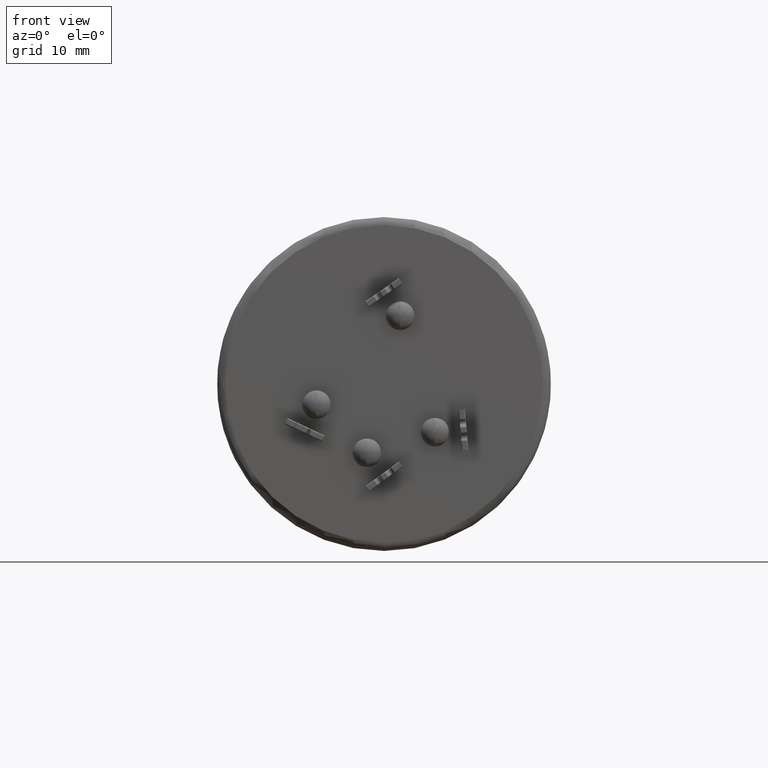
[diagram: clean part render]
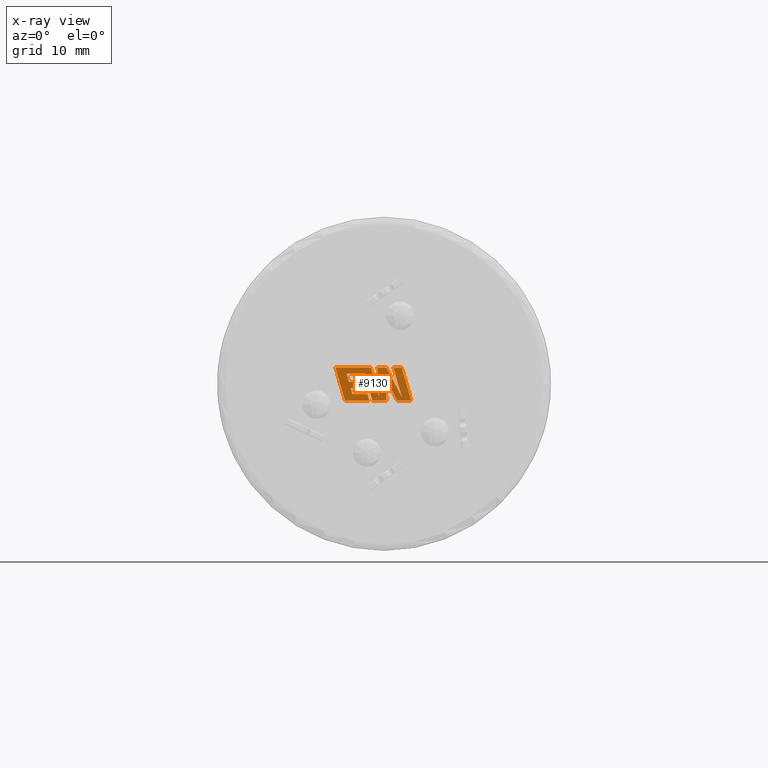
[diagram: x-ray — body ghosted, one internal face saturated and labeled with its STEP entity id]
A machine part, front view, then the same camera in x-ray: the body is ghosted and one INTERNAL B-rep face — a face not visible from any outside direction — is saturated and labeled: STEP entity #9130.
In plain terms, the highlighted planar face has unit normal (0, -1, -0).
Its self-contained STEP definition (entity closure, byte-faithful):
#107 = VECTOR ( 'NONE', #4814, 1000.000000000000100 ) ;
#343 = VECTOR ( 'NONE', #6453, 1000.000000000000000 ) ;
#400 = DIRECTION ( 'NONE',  ( -0.4443210308329211800, 0.0000000000000000000, 0.8958676361826953800 ) ) ;
#591 = VERTEX_POINT ( 'NONE', #9882 ) ;
#599 = CARTESIAN_POINT ( 'NONE',  ( -4.312160888083113300, 62.00000000000000000, 0.2396676425001874300 ) ) ;
#773 = LINE ( 'NONE', #10200, #13451 ) ;
#868 = DIRECTION ( 'NONE',  ( 1.000000000000000000, 0.0000000000000000000, 0.0000000000000000000 ) ) ;
#932 = VECTOR ( 'NONE', #868, 1000.000000000000000 ) ;
#1032 = CARTESIAN_POINT ( 'NONE',  ( 3.335533317767130200, 62.00000000000000000, -2.023302435020264000 ) ) ;
#1094 = ORIENTED_EDGE ( 'NONE', *, *, #7513, .F. ) ;
#1105 = VERTEX_POINT ( 'NONE', #3100 ) ;
#1109 = DIRECTION ( 'NONE',  ( 0.2763139702539113000, 0.0000000000000000000, -0.9610674221107073900 ) ) ;
#1199 = CARTESIAN_POINT ( 'NONE',  ( 2.176216635657580500, 62.00000000000000000, 2.009000000000000300 ) ) ;
#1225 = CARTESIAN_POINT ( 'NONE',  ( -2.581694746187825900, 62.00000000000000000, 0.2396676425001874300 ) ) ;
#1239 = DIRECTION ( 'NONE',  ( 0.4668459304955217500, 0.0000000000000000000, -0.8843386665637607000 ) ) ;
#1461 = VECTOR ( 'NONE', #14016, 1000.000000000000000 ) ;
#1533 = CARTESIAN_POINT ( 'NONE',  ( 2.187398335539627600, 62.00000000000000000, -1.598140366132060100 ) ) ;
#1557 = DIRECTION ( 'NONE',  ( 0.0000000000000000000, 0.0000000000000000000, -1.000000000000000000 ) ) ;
#1560 = EDGE_CURVE ( 'NONE', #7540, #6245, #10509, .T. ) ;
#1587 = DIRECTION ( 'NONE',  ( 1.000000000000000000, 0.0000000000000000000, 0.0000000000000000000 ) ) ;
#1684 = LINE ( 'NONE', #13516, #12309 ) ;
#1710 = EDGE_LOOP ( 'NONE', ( #4451, #9504, #13918, #10267, #5148, #13379, #5883, #5404, #6602, #1864, #9256, #1094, #14171, #14128, #9012, #13382, #13041, #2222, #13909, #10118, #2440, #1848, #9602 ) ) ;
#1721 = DIRECTION ( 'NONE',  ( -1.000000000000000000, 0.0000000000000000000, 0.0000000000000000000 ) ) ;
#1744 = CARTESIAN_POINT ( 'NONE',  ( 1.151546256298412900, 62.00000000000000000, 2.009000000000000300 ) ) ;
#1841 = LINE ( 'NONE', #3040, #13137 ) ;
#1848 = ORIENTED_EDGE ( 'NONE', *, *, #6838, .F. ) ;
#1864 = ORIENTED_EDGE ( 'NONE', *, *, #13686, .F. ) ;
#1903 = DIRECTION ( 'NONE',  ( -1.000000000000000000, 0.0000000000000000000, 0.0000000000000000000 ) ) ;
#1914 = VERTEX_POINT ( 'NONE', #10403 ) ;
#2090 = VERTEX_POINT ( 'NONE', #6152 ) ;
#2167 = CARTESIAN_POINT ( 'NONE',  ( -4.099487898866470000, 62.00000000000000000, -0.5057667556921767700 ) ) ;
#2222 = ORIENTED_EDGE ( 'NONE', *, *, #9972, .F. ) ;
#2410 = VERTEX_POINT ( 'NONE', #13416 ) ;
#2413 = DIRECTION ( 'NONE',  ( 0.05375259206908357400, 0.0000000000000000000, -0.9985542843760947300 ) ) ;
#2440 = ORIENTED_EDGE ( 'NONE', *, *, #7802, .F. ) ;
#2443 = CARTESIAN_POINT ( 'NONE',  ( -2.044090386040382100, 62.00000000000000000, -1.255774371050570000 ) ) ;
#2694 = EDGE_CURVE ( 'NONE', #2808, #9440, #9578, .T. ) ;
#2808 = VERTEX_POINT ( 'NONE', #14086 ) ;
#3040 = CARTESIAN_POINT ( 'NONE',  ( -4.805026188039965600, 62.00000000000000000, -2.023302435020260400 ) ) ;
#3093 = LINE ( 'NONE', #599, #9399 ) ;
#3100 = CARTESIAN_POINT ( 'NONE',  ( -2.044090386040382100, 62.00000000000000000, -1.255774371050570000 ) ) ;
#3208 = VECTOR ( 'NONE', #12075, 1000.000000000000000 ) ;
#3259 = VERTEX_POINT ( 'NONE', #12799 ) ;
#3288 = VECTOR ( 'NONE', #1721, 1000.000000000000000 ) ;
#3335 = CARTESIAN_POINT ( 'NONE',  ( -2.581694746187825900, 62.00000000000000000, 0.2396676425001874300 ) ) ;
#3357 = VECTOR ( 'NONE', #4123, 1000.000000000000000 ) ;
#3375 = LINE ( 'NONE', #3875, #107 ) ;
#3690 = EDGE_CURVE ( 'NONE', #8952, #4082, #3375, .T. ) ;
#3797 = CARTESIAN_POINT ( 'NONE',  ( -0.5905797502759012600, 62.00000000000000000, -1.580852869611435700 ) ) ;
#3843 = LINE ( 'NONE', #13650, #932 ) ;
#3875 = CARTESIAN_POINT ( 'NONE',  ( -1.423898382906036500, 62.00000000000000000, -2.023302435020260400 ) ) ;
#4082 = VERTEX_POINT ( 'NONE', #4364 ) ;
#4092 = CARTESIAN_POINT ( 'NONE',  ( -2.368776544254627100, 62.00000000000000000, -0.5057667556921767700 ) ) ;
#4123 = DIRECTION ( 'NONE',  ( -0.05596501978068303000, 0.0000000000000000000, 0.9984327301130245800 ) ) ;
#4364 = CARTESIAN_POINT ( 'NONE',  ( -2.362425534903341600, 62.00000000000000000, 1.241852015734259200 ) ) ;
#4451 = ORIENTED_EDGE ( 'NONE', *, *, #8412, .F. ) ;
#4492 = DIRECTION ( 'NONE',  ( 1.000000000000000000, 0.0000000000000000000, 0.0000000000000000000 ) ) ;
#4700 = EDGE_CURVE ( 'NONE', #591, #5643, #5343, .T. ) ;
#4784 = LINE ( 'NONE', #11010, #9059 ) ;
#4805 = CARTESIAN_POINT ( 'NONE',  ( -4.597711096710723300, 62.00000000000000000, 1.241852015734259200 ) ) ;
#4814 = DIRECTION ( 'NONE',  ( -0.2762517575166150200, 0.0000000000000000000, 0.9610853065513910200 ) ) ;
#4852 = EDGE_CURVE ( 'NONE', #8651, #1105, #13388, .T. ) ;
#4878 = DIRECTION ( 'NONE',  ( 1.000000000000000000, 0.0000000000000000000, 0.0000000000000000000 ) ) ;
#4916 = PLANE ( 'NONE',  #11743 ) ;
#4929 = CARTESIAN_POINT ( 'NONE',  ( -3.881248580980486200, 62.00000000000000000, -1.255774371050570000 ) ) ;
#5022 = EDGE_CURVE ( 'NONE', #7902, #3259, #9071, .T. ) ;
#5148 = ORIENTED_EDGE ( 'NONE', *, *, #10970, .F. ) ;
#5343 = LINE ( 'NONE', #1199, #13741 ) ;
#5382 = LINE ( 'NONE', #1032, #10890 ) ;
#5404 = ORIENTED_EDGE ( 'NONE', *, *, #6474, .F. ) ;
#5405 = VECTOR ( 'NONE', #10495, 1000.000000000000100 ) ;
#5412 = LINE ( 'NONE', #7930, #10042 ) ;
#5413 = CARTESIAN_POINT ( 'NONE',  ( -1.423898382906036500, 62.00000000000000000, -2.023302435020260400 ) ) ;
#5437 = CARTESIAN_POINT ( 'NONE',  ( -2.362425534903341600, 62.00000000000000000, 1.241852015734259200 ) ) ;
#5471 = CARTESIAN_POINT ( 'NONE',  ( 3.335533317767130200, 62.00000000000000000, -2.023302435020264000 ) ) ;
#5643 = VERTEX_POINT ( 'NONE', #5471 ) ;
#5719 = DIRECTION ( 'NONE',  ( 0.2732148821745956600, 0.0000000000000000000, -0.9619530280415576900 ) ) ;
#5881 = CARTESIAN_POINT ( 'NONE',  ( 1.151546256298412900, 62.00000000000000000, 2.009000000000000300 ) ) ;
#5883 = ORIENTED_EDGE ( 'NONE', *, *, #6680, .F. ) ;
#6063 = VERTEX_POINT ( 'NONE', #7635 ) ;
#6089 = LINE ( 'NONE', #2167, #3208 ) ;
#6152 = CARTESIAN_POINT ( 'NONE',  ( 0.2933165664309074200, 62.00000000000000000, -2.023302435020260400 ) ) ;
#6245 = VERTEX_POINT ( 'NONE', #5881 ) ;
#6267 = DIRECTION ( 'NONE',  ( -0.2765379750249943900, 0.0000000000000000000, 0.9610029908221283700 ) ) ;
#6307 = LINE ( 'NONE', #3335, #12162 ) ;
#6432 = CARTESIAN_POINT ( 'NONE',  ( 0.2831744625767413900, 62.00000000000000000, 2.009000000000000300 ) ) ;
#6452 = EDGE_CURVE ( 'NONE', #6245, #591, #12957, .T. ) ;
#6453 = DIRECTION ( 'NONE',  ( -1.000000000000000000, 0.0000000000000000000, 0.0000000000000000000 ) ) ;
#6474 = EDGE_CURVE ( 'NONE', #2410, #11620, #11255, .T. ) ;
#6602 = ORIENTED_EDGE ( 'NONE', *, *, #12372, .F. ) ;
#6680 = EDGE_CURVE ( 'NONE', #11620, #1914, #7279, .T. ) ;
#6838 = EDGE_CURVE ( 'NONE', #7366, #2090, #773, .T. ) ;
#7168 = EDGE_CURVE ( 'NONE', #4082, #11172, #7954, .T. ) ;
#7221 = CARTESIAN_POINT ( 'NONE',  ( -2.368776544254627100, 62.00000000000000000, -0.5057667556921767700 ) ) ;
#7279 = LINE ( 'NONE', #10702, #3357 ) ;
#7366 = VERTEX_POINT ( 'NONE', #13255 ) ;
#7493 = DIRECTION ( 'NONE',  ( 0.2740217765954066100, 0.0000000000000000000, -0.9617234872620595800 ) ) ;
#7513 = EDGE_CURVE ( 'NONE', #1105, #2808, #12646, .T. ) ;
#7530 = CARTESIAN_POINT ( 'NONE',  ( 2.187398335539627600, 62.00000000000000000, -1.598140366132060100 ) ) ;
#7540 = VERTEX_POINT ( 'NONE', #1533 ) ;
#7583 = DIRECTION ( 'NONE',  ( -0.2760118818968552200, 0.0000000000000000000, 0.9611542233438691300 ) ) ;
#7635 = CARTESIAN_POINT ( 'NONE',  ( 1.566992894571485900, 62.00000000000000000, -2.023302435020264000 ) ) ;
#7802 = EDGE_CURVE ( 'NONE', #2090, #8952, #13151, .T. ) ;
#7902 = VERTEX_POINT ( 'NONE', #7221 ) ;
#7930 = CARTESIAN_POINT ( 'NONE',  ( 0.2831744625767413900, 62.00000000000000000, 2.009000000000000300 ) ) ;
#7954 = LINE ( 'NONE', #5437, #1461 ) ;
#7962 = CARTESIAN_POINT ( 'NONE',  ( -5.965360506162028300, 62.00000000000000000, 2.009000000000000300 ) ) ;
#8412 = EDGE_CURVE ( 'NONE', #5643, #6063, #5382, .T. ) ;
#8651 = VERTEX_POINT ( 'NONE', #4929 ) ;
#8813 = CARTESIAN_POINT ( 'NONE',  ( -2.339069026851183800, 62.00000000000000000, 2.009000000000000300 ) ) ;
#8952 = VERTEX_POINT ( 'NONE', #5413 ) ;
#9012 = ORIENTED_EDGE ( 'NONE', *, *, #5022, .F. ) ;
#9059 = VECTOR ( 'NONE', #7493, 1000.000000000000100 ) ;
#9071 = LINE ( 'NONE', #4092, #3288 ) ;
#9130 = ADVANCED_FACE ( 'NONE', ( #10507 ), #4916, .T. ) ;
#9189 = VECTOR ( 'NONE', #5719, 1000.000000000000000 ) ;
#9246 = DIRECTION ( 'NONE',  ( 1.000000000000000000, 0.0000000000000000000, 0.0000000000000000000 ) ) ;
#9256 = ORIENTED_EDGE ( 'NONE', *, *, #2694, .F. ) ;
#9399 = VECTOR ( 'NONE', #1587, 1000.000000000000000 ) ;
#9440 = VERTEX_POINT ( 'NONE', #9700 ) ;
#9446 = VECTOR ( 'NONE', #4492, 1000.000000000000000 ) ;
#9504 = ORIENTED_EDGE ( 'NONE', *, *, #4700, .F. ) ;
#9578 = LINE ( 'NONE', #11751, #343 ) ;
#9602 = ORIENTED_EDGE ( 'NONE', *, *, #13503, .F. ) ;
#9700 = CARTESIAN_POINT ( 'NONE',  ( -4.805026188039965600, 62.00000000000000000, -2.023302435020260400 ) ) ;
#9824 = DIRECTION ( 'NONE',  ( 0.2746459304916903900, 0.0000000000000000000, -0.9615454294334477800 ) ) ;
#9882 = CARTESIAN_POINT ( 'NONE',  ( 2.176216635657580500, 62.00000000000000000, 2.009000000000000300 ) ) ;
#9972 = EDGE_CURVE ( 'NONE', #11172, #13008, #4784, .T. ) ;
#10029 = VECTOR ( 'NONE', #4878, 1000.000000000000000 ) ;
#10042 = VECTOR ( 'NONE', #1239, 1000.000000000000100 ) ;
#10118 = ORIENTED_EDGE ( 'NONE', *, *, #3690, .F. ) ;
#10200 = CARTESIAN_POINT ( 'NONE',  ( 0.1382457451524730900, 62.00000000000000000, 0.8574262332882234300 ) ) ;
#10241 = VECTOR ( 'NONE', #1903, 1000.000000000000000 ) ;
#10267 = ORIENTED_EDGE ( 'NONE', *, *, #1560, .F. ) ;
#10403 = CARTESIAN_POINT ( 'NONE',  ( -0.7918013056177446400, 62.00000000000000000, 2.009000000000000300 ) ) ;
#10495 = DIRECTION ( 'NONE',  ( 0.2759782365590804400, 0.0000000000000000000, -0.9611638845408936300 ) ) ;
#10507 = FACE_OUTER_BOUND ( 'NONE', #1710, .T. ) ;
#10509 = LINE ( 'NONE', #7530, #11215 ) ;
#10565 = CARTESIAN_POINT ( 'NONE',  ( 0.2933165664309074200, 62.00000000000000000, -2.023302435020260400 ) ) ;
#10702 = CARTESIAN_POINT ( 'NONE',  ( -0.5905797502759012600, 62.00000000000000000, -1.580852869611435700 ) ) ;
#10858 = EDGE_CURVE ( 'NONE', #3259, #8651, #6089, .T. ) ;
#10860 = DIRECTION ( 'NONE',  ( -1.000000000000000000, 0.0000000000000000000, 0.0000000000000000000 ) ) ;
#10890 = VECTOR ( 'NONE', #10860, 1000.000000000000000 ) ;
#10970 = EDGE_CURVE ( 'NONE', #11283, #7540, #5412, .T. ) ;
#11010 = CARTESIAN_POINT ( 'NONE',  ( -4.597711096710723300, 62.00000000000000000, 1.241852015734259200 ) ) ;
#11172 = VERTEX_POINT ( 'NONE', #4805 ) ;
#11215 = VECTOR ( 'NONE', #7583, 1000.000000000000200 ) ;
#11255 = LINE ( 'NONE', #13848, #5405 ) ;
#11283 = VERTEX_POINT ( 'NONE', #6432 ) ;
#11517 = VERTEX_POINT ( 'NONE', #7962 ) ;
#11620 = VERTEX_POINT ( 'NONE', #3797 ) ;
#11638 = EDGE_CURVE ( 'NONE', #1914, #11283, #3843, .T. ) ;
#11743 = AXIS2_PLACEMENT_3D ( 'NONE', #13733, #12500, #1557 ) ;
#11751 = CARTESIAN_POINT ( 'NONE',  ( -1.826096280870711300, 62.00000000000000000, -2.023302435020260400 ) ) ;
#11874 = LINE ( 'NONE', #8813, #9446 ) ;
#12075 = DIRECTION ( 'NONE',  ( 0.2793947940878328500, 0.0000000000000000000, -0.9601763114327583900 ) ) ;
#12162 = VECTOR ( 'NONE', #9824, 1000.000000000000200 ) ;
#12309 = VECTOR ( 'NONE', #400, 1000.000000000000000 ) ;
#12372 = EDGE_CURVE ( 'NONE', #11517, #2410, #11874, .T. ) ;
#12500 = DIRECTION ( 'NONE',  ( 0.0000000000000000000, -1.000000000000000000, -0.0000000000000000000 ) ) ;
#12646 = LINE ( 'NONE', #2443, #9189 ) ;
#12709 = VECTOR ( 'NONE', #9246, 1000.000000000000000 ) ;
#12799 = CARTESIAN_POINT ( 'NONE',  ( -4.099487898866470000, 62.00000000000000000, -0.5057667556921767700 ) ) ;
#12886 = EDGE_CURVE ( 'NONE', #13008, #13408, #3093, .T. ) ;
#12957 = LINE ( 'NONE', #1744, #10029 ) ;
#13008 = VERTEX_POINT ( 'NONE', #13713 ) ;
#13041 = ORIENTED_EDGE ( 'NONE', *, *, #12886, .F. ) ;
#13137 = VECTOR ( 'NONE', #6267, 999.9999999999998900 ) ;
#13151 = LINE ( 'NONE', #10565, #10241 ) ;
#13255 = CARTESIAN_POINT ( 'NONE',  ( 0.1382457451524730900, 62.00000000000000000, 0.8574262332882234300 ) ) ;
#13260 = EDGE_CURVE ( 'NONE', #13408, #7902, #6307, .T. ) ;
#13379 = ORIENTED_EDGE ( 'NONE', *, *, #11638, .F. ) ;
#13382 = ORIENTED_EDGE ( 'NONE', *, *, #13260, .F. ) ;
#13388 = LINE ( 'NONE', #13628, #12709 ) ;
#13408 = VERTEX_POINT ( 'NONE', #1225 ) ;
#13416 = CARTESIAN_POINT ( 'NONE',  ( -1.621331405010768100, 62.00000000000000000, 2.009000000000000300 ) ) ;
#13451 = VECTOR ( 'NONE', #2413, 1000.000000000000100 ) ;
#13503 = EDGE_CURVE ( 'NONE', #6063, #7366, #1684, .T. ) ;
#13516 = CARTESIAN_POINT ( 'NONE',  ( 1.566992894571485900, 62.00000000000000000, -2.023302435020264000 ) ) ;
#13628 = CARTESIAN_POINT ( 'NONE',  ( -3.881248580980486200, 62.00000000000000000, -1.255774371050570000 ) ) ;
#13650 = CARTESIAN_POINT ( 'NONE',  ( -0.7918013056177446400, 62.00000000000000000, 2.009000000000000300 ) ) ;
#13686 = EDGE_CURVE ( 'NONE', #9440, #11517, #1841, .T. ) ;
#13713 = CARTESIAN_POINT ( 'NONE',  ( -4.312160888083113300, 62.00000000000000000, 0.2396676425001874300 ) ) ;
#13733 = CARTESIAN_POINT ( 'NONE',  ( 1.460276826278656500, 62.00000000000000000, 0.5733684290860386900 ) ) ;
#13741 = VECTOR ( 'NONE', #1109, 1000.000000000000000 ) ;
#13848 = CARTESIAN_POINT ( 'NONE',  ( -1.621331405010768100, 62.00000000000000000, 2.009000000000000300 ) ) ;
#13909 = ORIENTED_EDGE ( 'NONE', *, *, #7168, .F. ) ;
#13918 = ORIENTED_EDGE ( 'NONE', *, *, #6452, .F. ) ;
#14016 = DIRECTION ( 'NONE',  ( -1.000000000000000000, 0.0000000000000000000, 0.0000000000000000000 ) ) ;
#14086 = CARTESIAN_POINT ( 'NONE',  ( -1.826096280870711300, 62.00000000000000000, -2.023302435020260400 ) ) ;
#14128 = ORIENTED_EDGE ( 'NONE', *, *, #10858, .F. ) ;
#14171 = ORIENTED_EDGE ( 'NONE', *, *, #4852, .F. ) ;